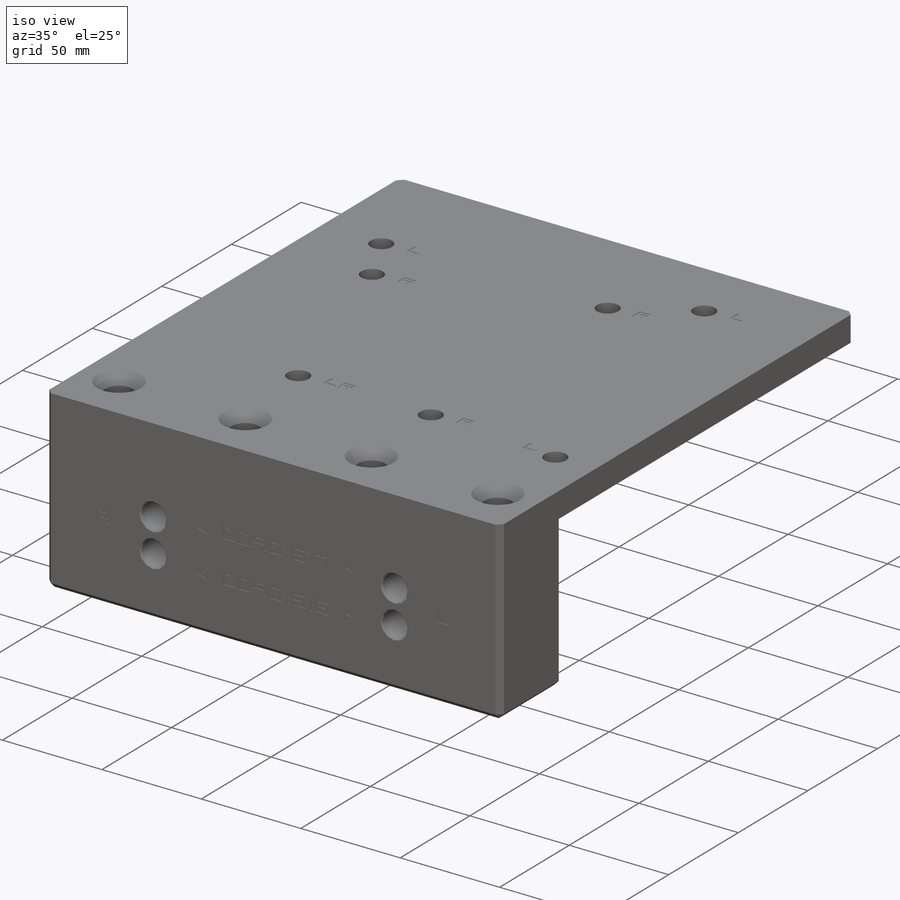
[diagram: iso view]
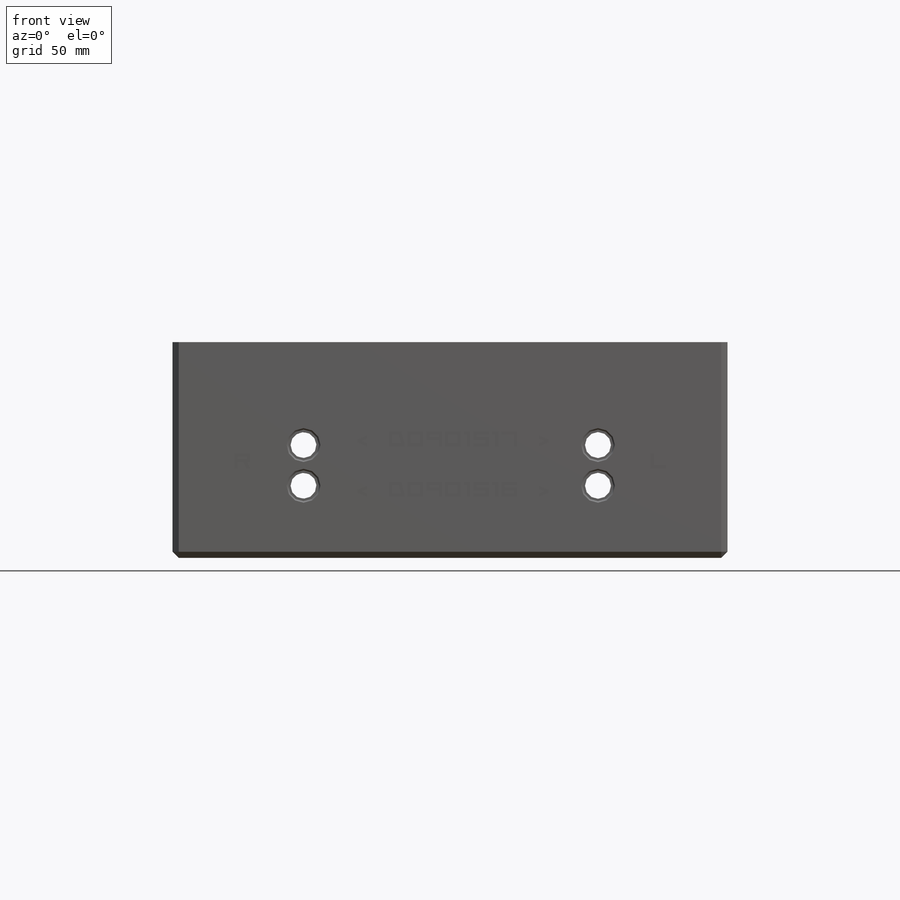
[diagram: front view]
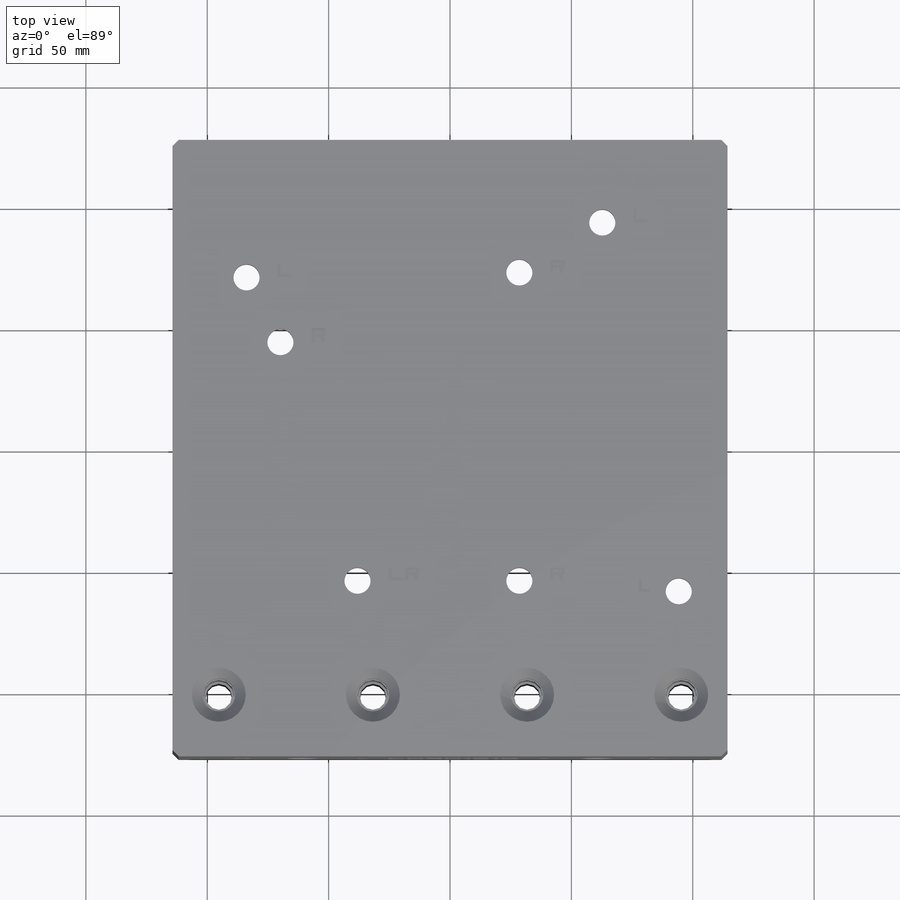
[diagram: top view]
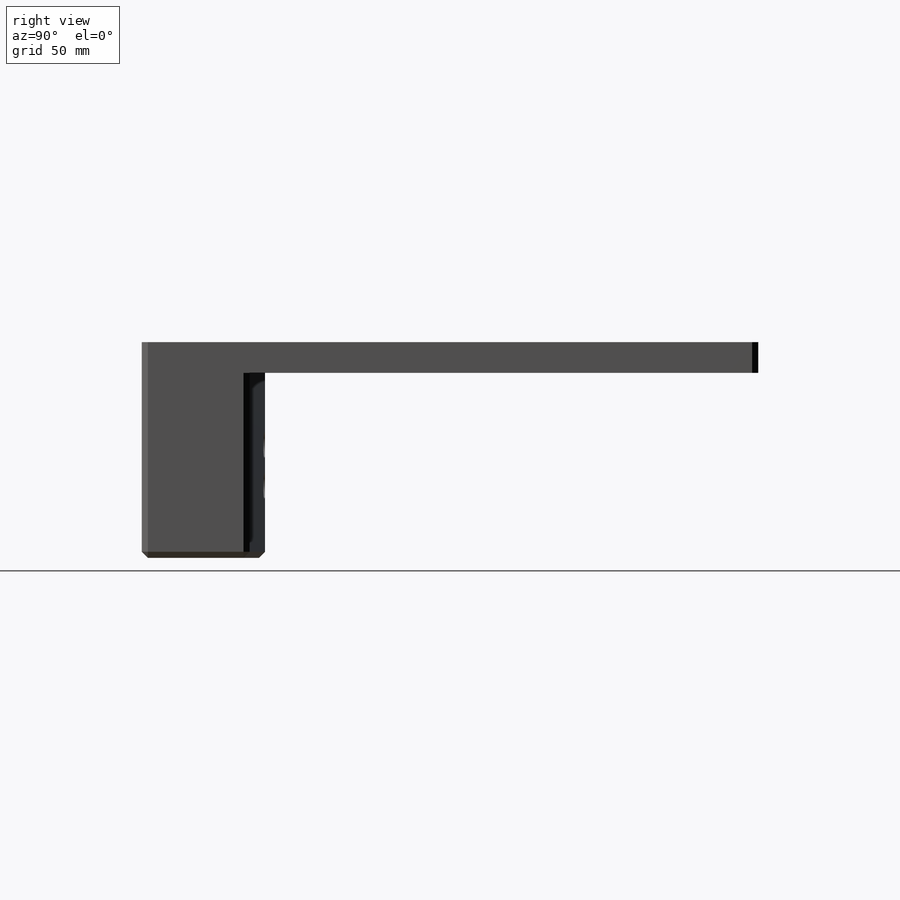
[diagram: right view]
SOLIDWORKS PART (.sldprt)
format: sldprt  version: not decoded by parser v0  size: 1,584,640 bytes
history: native  units: mm
features: sketch x13, cut_extrude x5, hole x3, extrude x2, pattern_linear x2, chamfer x2, material x1, fillet x1 + 1 further entry (+14 scaffold rows collapsed)
feature tree (44):
  scaffold x14  (default folders/planes/origin — collapsed)
  material  "6061-T6 Al"
  "Origin"  ID=-1
  sketch  "Sketch1"  dims[c1.D1=254.0mm c1.D2=228.6mm c2.D1=228.6mm c2.D2=254.0mm]
  extrude  "Boss-Extrude1"  Depth=12.7mm
  sketch  "Sketch5"  dims[c1.D3=10.795mm c1.D5=11.43mm c1.D6=10.795mm c1.D8=7.9375mm c1.D9=7.9375mm c2.D6=7.9375mm c2.D9=7.9375mm c2.D10=7.9375mm c2.D11=7.9375mm c2.D12=7.9375mm c2.D13=7.9375mm c2.D14=7.9375mm c2.D15=7.9375mm c2.D1=30.48mm c2.D2=56.642mm c2.D4=76.2mm c2.D5=181.61mm c2.D7=44.45mm c2.D8=83.312mm c3.D6=54.61mm c3.D9=142.875mm c3.D10=181.61mm c3.D11=185.928mm c3.D12=142.875mm c3.D13=208.534mm c3.D14=34.036mm c3.D15=177.038mm]
  cut_extrude  "Plate Holes"  [1 undecoded]
  hole  "CSK for 1/2 Flat Head Machine Screw1"  Diameter=13.49248mm Depth=12.7mm
  sketch  "Sketch9"  dims[D1=25.4mm D2=19.05mm]
  sketch  "Sketch8"  dims[hole-wizard template sketch: 39 standard entries collapsed; hole parameters kept: c13.Hole Dia.=~13.49248mm c13.Hole Depth=12.7mm c13.Near C'Sink Dia.=22.225mm c13.D4=~33.297463mm c13.Near C'Sink Angle=82.0deg c14.D5=~14.816244mm c14.Drill Angle=118.0deg]
  pattern_linear  "LPattern1"  Count1=4 Count2=1 Spacing1=63.5mm Spacing2=2.54mm
  chamfer  "Chamfer2"  Distance=2.54mm Angle=45deg
  sketch  "Sketch12"  dims[c1.D1=10.795mm c1.D2=10.795mm c1.D3=10.795mm c1.D4=10.795mm c1.D5=10.795mm c1.D7=10.795mm c2.D1=12.7mm c2.D2=12.7mm c2.D3=12.7mm c2.D4=12.7mm c2.D5=16.51mm c2.D6=12.7mm c2.D7=12.7mm c2.D8=6.35mm]
  cut_extrude  "Cut-Extrude L R"  Depth=0.254mm
  sketch  "Sketch2"  dims[D1=50.8mm D2=76.2mm D3=114.3mm D4=114.3mm]
  extrude  "Boss-Extrude2"  Depth=76.2mm
  hole  "1/2-13 Tapped Hole1"  Diameter=10.71626mm Depth=254mm
  sketch  "Sketch4"  dims[c1.D1=58.42mm c1.D2=59.182mm c1.D3=46.482mm c1.Pivot hole=60.325mm c1.Pivot Point 2=60.96mm c1.D4=59.182mm c1.D5=62.23mm c2.D1=46.482mm c2.D2=29.718mm c2.D4=29.718mm]
  sketch  "Sketch3"  dims[hole-wizard template sketch: 42 standard entries collapsed; hole parameters kept: c12.Thru Tap Drill Depth=254.0mm c12.Thread Major Dia.=12.7mm c12.Thread Depth=33.782mm c12.Near C'Sink Dia.=13.97mm c12.D6=~4.399409mm c12.Near C'Sink Angle=90.0deg]
  sketch  "Sketch6"  dims[c1.D1=165.1mm c1.D2=6.35mm c2.D1=177.8mm c2.D3=101.6mm]
  cut_extrude  "clearance, plate curvature"  Depth=76.2mm
  fillet  "Fillet1"  Radius=6.35mm
  sketch  "Sketch7"
  cut_extrude  "Plate Number Text"  Depth=0.254mm
  hole  "1/2-13 Tapped Hole2"  Diameter=10.71626mm Depth=76.2mm
  sketch  "Sketch11"  dims[D1=25.4mm D2=19.05mm]
  sketch  "Sketch10"  dims[hole-wizard template sketch: 29 standard entries collapsed; hole parameters kept: c8.Tap Drill Depth=76.2mm c8.Thread Major Dia.=12.7mm c8.Thread Depth=33.782mm c8.D5=~14.816244mm c8.Drill Angle=118.0deg]
  pattern_linear  "LPattern2"  Count1=4 Count2=1 Spacing1=63.5mm Spacing2=2.54mm
  chamfer  "Chamfer1"  Distance=2.54mm Angle=45deg
  sketch  "Sketch13"  dims[D1=88.9mm D2=82.55mm D3=39.37mm]
  cut_extrude  "Cut-Extrude1"  Depth=0.254mm
decode coverage: 26 of 28 modeling features carry decoded parameters; 1 rows unclassified (native names shown)
note: ~ marks probable driven/reference dimensions
note: 1 parameter value undecoded
note: suppression state not decoded; provenance and decode notes live in map.json
